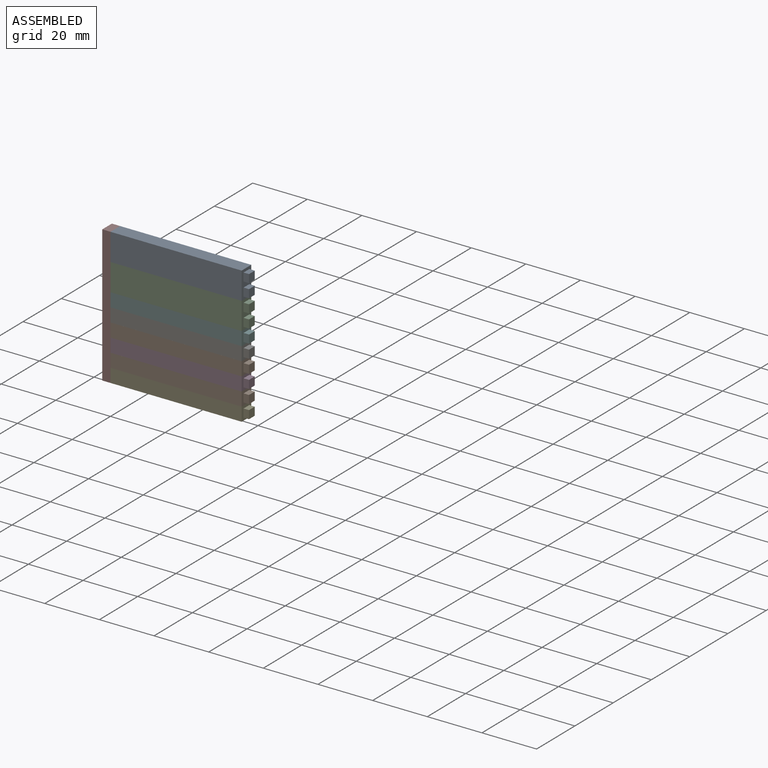
[diagram: assembled view]
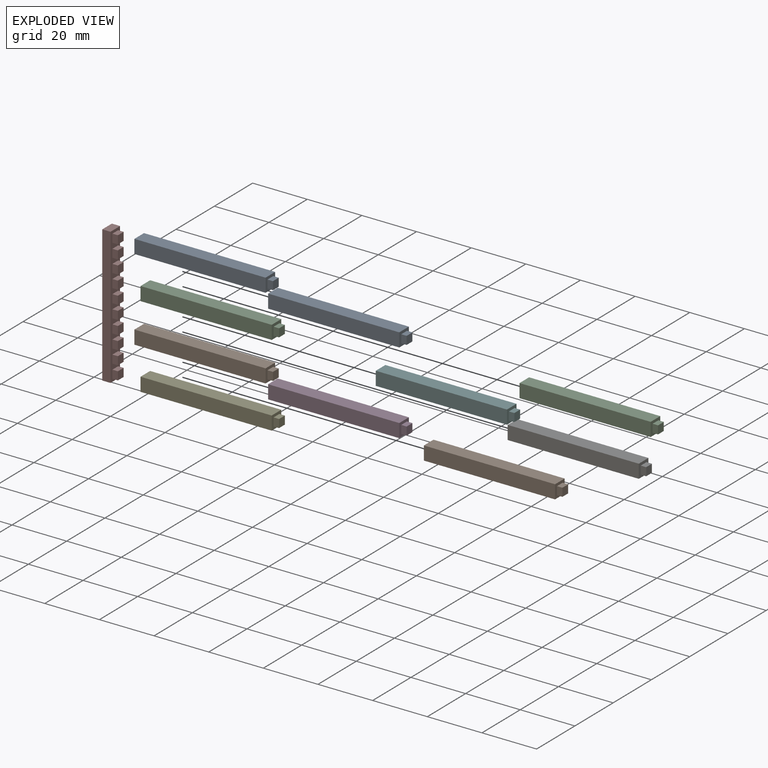
[diagram: exploded view]
GUIDED TOUR — MATED ASSEMBLY (Onshape document bbbdeaeaa51ca19b8bdb1864, AutoMate assembly bbbdeaeaa51ca19b8bdb1864_1c75b589501f7478635b629a_1ab8af5fc73595b730435a07_default)

This assembly has 11 components, labeled P0..P10 below (a component is one placed occurrence of a part; the same part can appear more than once), held together by 10 mates. A mate is a constraint between two components; its type names the relative motion it leaves free:
  FASTENED — locks the two components together rigidly (no relative motion).
Axis/direction vectors are unit vectors and 'through' points are millimeter coordinates, both in the assembly's world frame.

MATES
  1. FASTENED "Fastened 1": P7 <-> P0, direction (1.000, 0.000, 0.000) through (-10.22, 0.00, -9.99) mm
  2. FASTENED "Fastened 4": P7 <-> P2, direction (1.000, 0.000, 0.000) through (-10.22, 0.00, -24.99) mm
  3. FASTENED "Fastened 2": P7 <-> P8, direction (1.000, 0.000, 0.000) through (-10.22, 0.00, -14.99) mm
  4. FASTENED "Fastened 10": P4 <-> P7, direction (-1.000, 0.000, 0.000) through (-10.22, 0.00, -54.99) mm
  5. FASTENED "Fastened 6": P1 <-> P7, direction (-1.000, 0.000, 0.000) through (-10.22, 0.00, -39.99) mm
  6. FASTENED "Fastened 9": P7 <-> P9, direction (1.000, 0.000, 0.000) through (-10.22, 0.00, -49.99) mm
  7. FASTENED "Fastened 5": P5 <-> P7, direction (-1.000, 0.000, 0.000) through (-10.22, 0.00, -29.99) mm
  8. FASTENED "Fastened 8": P3 <-> P7, direction (-1.000, 0.000, 0.000) through (-10.22, 0.00, -44.99) mm
  9. FASTENED "Fastened 7": P7 <-> P6, direction (1.000, 0.000, 0.000) through (-10.22, 0.00, -34.99) mm
  10. FASTENED "Fastened 3": P7 <-> P10, direction (1.000, 0.000, 0.000) through (-10.22, 0.00, -19.99) mm

ASSEMBLY ORDER
  1. P7 — the base component [order heuristic]
  2. P0 [order heuristic]
  3. P1 [order heuristic]
  4. P2 [order heuristic]
  5. P3 [order heuristic]
  6. P4 [order heuristic]
  7. P5 [order heuristic]
  8. P6 [order heuristic]
  9. P8 [order heuristic]
  10. P9 [order heuristic]
  11. P10 [order heuristic]
Order-tag legend:
  [order heuristic] — this assembly is geometrically interlocked (no collision-free removal order exists), so components are listed in mate-graph order; insertion feasibility is not verified.

Of the 11 components, 11 carry the full construction recipe — the FeatureScript program that regenerates the part's solid from scratch; the rest are supplied as boundary geometry only.
Each toured component is shown spotlighted twice — in the assembled view, then in the exploded view, where a leader line traces a displaced component back to its assembled socket (saturated green if recipe-attached, orange if geometry-only; every other component desaturated gray) — followed by its recipe or geometry summary and the mates that hold it.
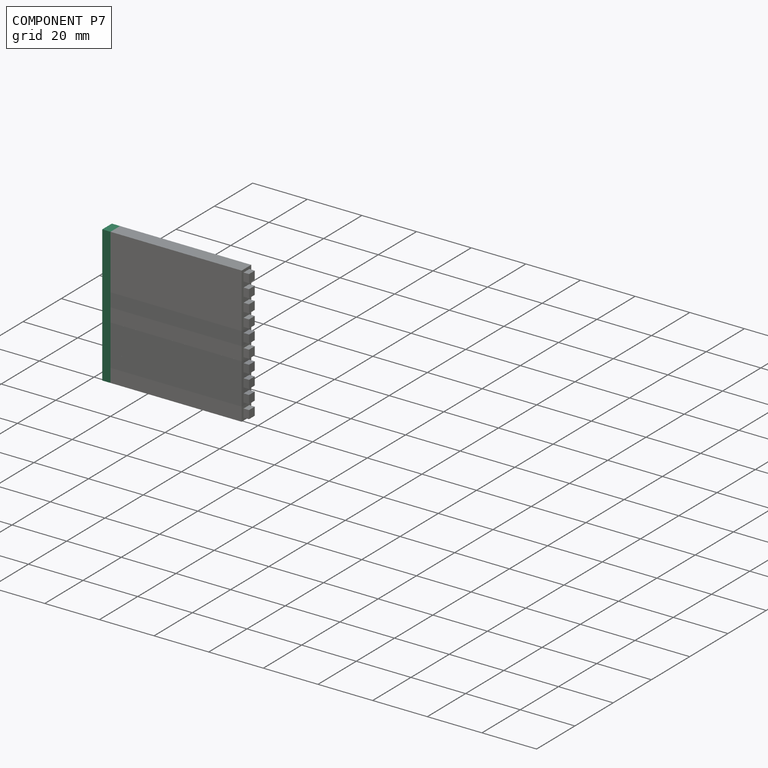
[diagram: component P7 — assembled]
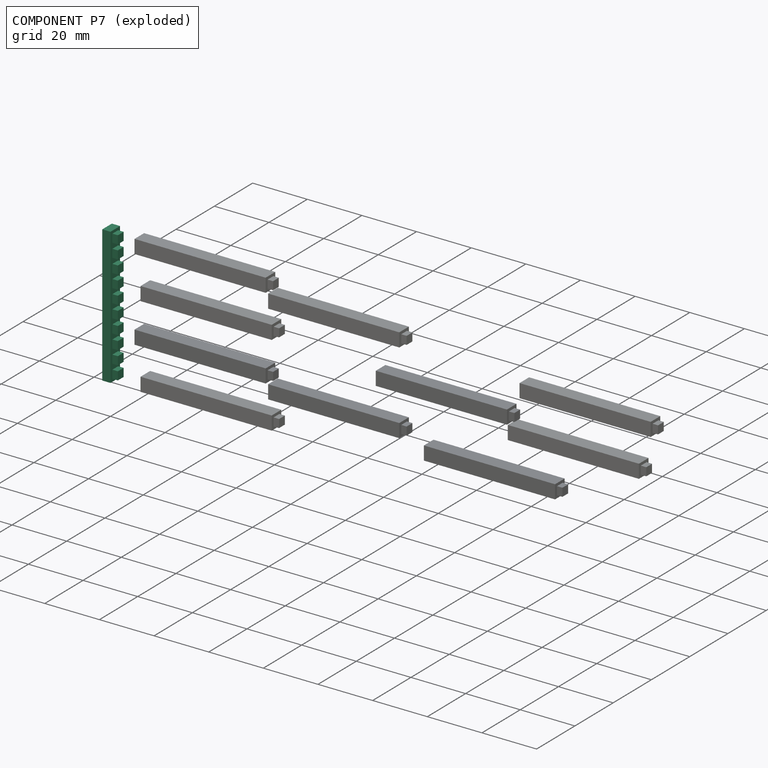
[diagram: component P7 — exploded]
COMPONENT P7 — recipe-attached (CADFS 00635119, mesh-verified: the recipe's output STEP matches this component's geometry to below the mesh-comparison resolution (tessellation chordal tolerance ~0.0757 mm)).
Held by: FASTENED mate "Fastened 1" to P0; FASTENED mate "Fastened 4" to P2; FASTENED mate "Fastened 2" to P8; FASTENED mate "Fastened 10" to P4; FASTENED mate "Fastened 6" to P1; FASTENED mate "Fastened 9" to P9; FASTENED mate "Fastened 5" to P5; FASTENED mate "Fastened 8" to P3; FASTENED mate "Fastened 7" to P6; FASTENED mate "Fastened 3" to P10.
Construction recipe (FeatureScript — the CAD program that rebuilds this solid; sketch coordinates are in the units given by the * unit suffixes, e.g. mm):

FeatureScript 1511;
import(path : "onshape/std/geometry.fs", version : "1511.0");
import(path : "onshape/std/common.fs", version : "1511.0");
const mm = millimeter;
const VERTEX = EntityType.VERTEX;
const EDGE = EntityType.EDGE;
const FACE = EntityType.FACE;
const BODY = EntityType.BODY;
function v(x, y){return vector(x, y);}
function OD(order){return orderDisambiguation(order);}
function OSD(set){return originalSetDisambiguation(set);}
function TD(topology){return topologyDisambiguation(topology);}
function TDD(query){return trueDependencyDisambiguation(query);}
function sQuery(a, b, c) {return sketchEntityQuery(a, b, c);}

annotation { "Feature Type Name" : "Feature", "Feature Type Description" : "" }
export const myFeature = defineFeature(function(context is Context, id is Id, definition is map)
    precondition{}
    {
        {
            var Q0;
            Q0=qCreatedBy(makeId("Front.planeOp"),FACE);
            var sketch = newSketch(context, id + "F0", { "sketchPlane" : qUnion([Q0])});
            skLineSegment(sketch, "E0.bottom", {"start": v(-25, -2.5) * mm, "end": v(25, -2.5) * mm});
            skLineSegment(sketch, "E0.top", {"start": v(-25, 2.5) * mm, "end": v(25, 2.5) * mm});
            skLineSegment(sketch, "E0.left", {"start": v(-25, -2.5) * mm, "end": v(-25, 2.5) * mm});
            skLineSegment(sketch, "E0.right", {"start": v(25, -2.5) * mm, "end": v(25, 2.5) * mm});
            skPoint(sketch, "E0.middle", {"position": v(0, 0) * mm});
            skSolve(sketch);
        }
        {
            var Q0;
            Q0 = qSketchRegion(id + "F0", true);
            extrude(context, id + "F1", {"entities" : qUnion([Q0]), "depth" : 3 * mm, "offsetDistance" : 25.4 * mm});
        }
        {
            var Q0;
            Q0=makeQuery(id+"F1.opExtrude","CAP_FACE",FACE,{"disambiguationData":[OSD([sQuery(id+"F0.wireOp",EDGE,"E0.bottom"),sQuery(id+"F0.wireOp",EDGE,"E0.top"),sQuery(id+"F0.wireOp",EDGE,"E0.left"),sQuery(id+"F0.wireOp",EDGE,"E0.right")])],"isStart":false});
            var sketch = newSketch(context, id + "F2", { "sketchPlane" : qUnion([Q0])});
            skLineSegment(sketch, "E1.bottom", {"start": v(-21, -1.5) * mm, "end": v(-24, -1.5) * mm});
            skLineSegment(sketch, "E1.top", {"start": v(-21, 1.5) * mm, "end": v(-24, 1.5) * mm});
            skLineSegment(sketch, "E1.left", {"start": v(-21, -1.5) * mm, "end": v(-21, 1.5) * mm});
            skLineSegment(sketch, "E1.right", {"start": v(-24, -1.5) * mm, "end": v(-24, 1.5) * mm});
            skPoint(sketch, "E1.middle", {"position": v(-22.5, 0) * mm});
            skPoint(sketch, "E1.middle.positionSnap0", {"position": v(-25, 0) * mm});
            skPoint(sketch, "E1.centerSnap0", {"position": v(-25, 0) * mm});
            skLineSegment(sketch, "E2.1.0.0", {"start": v(-19, -1.5) * mm, "end": v(-19, 1.5) * mm});
            skLineSegment(sketch, "E2.1.0.1", {"start": v(-16, 1.5) * mm, "end": v(-19, 1.5) * mm});
            skLineSegment(sketch, "E2.1.0.2", {"start": v(-16, -1.5) * mm, "end": v(-16, 1.5) * mm});
            skLineSegment(sketch, "E2.1.0.3", {"start": v(-16, -1.5) * mm, "end": v(-19, -1.5) * mm});
            skLineSegment(sketch, "E2.2.0.0", {"start": v(-14, -1.5) * mm, "end": v(-14, 1.5) * mm});
            skLineSegment(sketch, "E2.2.0.1", {"start": v(-11, 1.5) * mm, "end": v(-14, 1.5) * mm});
            skLineSegment(sketch, "E2.2.0.2", {"start": v(-11, -1.5) * mm, "end": v(-11, 1.5) * mm});
            skLineSegment(sketch, "E2.2.0.3", {"start": v(-11, -1.5) * mm, "end": v(-14, -1.5) * mm});
            skLineSegment(sketch, "E2.3.0.0", {"start": v(-9, -1.5) * mm, "end": v(-9, 1.5) * mm});
            skLineSegment(sketch, "E2.3.0.1", {"start": v(-6, 1.5) * mm, "end": v(-9, 1.5) * mm});
            skLineSegment(sketch, "E2.3.0.2", {"start": v(-6, -1.5) * mm, "end": v(-6, 1.5) * mm});
            skLineSegment(sketch, "E2.3.0.3", {"start": v(-6, -1.5) * mm, "end": v(-9, -1.5) * mm});
            skLineSegment(sketch, "E2.4.0.0", {"start": v(-4, -1.5) * mm, "end": v(-4, 1.5) * mm});
            skLineSegment(sketch, "E2.4.0.1", {"start": v(-1, 1.5) * mm, "end": v(-4, 1.5) * mm});
            skLineSegment(sketch, "E2.4.0.2", {"start": v(-1, -1.5) * mm, "end": v(-1, 1.5) * mm});
            skLineSegment(sketch, "E2.4.0.3", {"start": v(-1, -1.5) * mm, "end": v(-4, -1.5) * mm});
            skLineSegment(sketch, "E2.5.0.0", {"start": v(1, -1.5) * mm, "end": v(1, 1.5) * mm});
            skLineSegment(sketch, "E2.5.0.1", {"start": v(4, 1.5) * mm, "end": v(1, 1.5) * mm});
            skLineSegment(sketch, "E2.5.0.2", {"start": v(4, -1.5) * mm, "end": v(4, 1.5) * mm});
            skLineSegment(sketch, "E2.5.0.3", {"start": v(4, -1.5) * mm, "end": v(1, -1.5) * mm});
            skLineSegment(sketch, "E2.6.0.0", {"start": v(6, -1.5) * mm, "end": v(6, 1.5) * mm});
            skLineSegment(sketch, "E2.6.0.1", {"start": v(9, 1.5) * mm, "end": v(6, 1.5) * mm});
            skLineSegment(sketch, "E2.6.0.2", {"start": v(9, -1.5) * mm, "end": v(9, 1.5) * mm});
            skLineSegment(sketch, "E2.6.0.3", {"start": v(9, -1.5) * mm, "end": v(6, -1.5) * mm});
            skLineSegment(sketch, "E2.7.0.0", {"start": v(11, -1.5) * mm, "end": v(11, 1.5) * mm});
            skLineSegment(sketch, "E2.7.0.1", {"start": v(14, 1.5) * mm, "end": v(11, 1.5) * mm});
            skLineSegment(sketch, "E2.7.0.2", {"start": v(14, -1.5) * mm, "end": v(14, 1.5) * mm});
            skLineSegment(sketch, "E2.7.0.3", {"start": v(14, -1.5) * mm, "end": v(11, -1.5) * mm});
            skLineSegment(sketch, "E2.8.0.0", {"start": v(16, -1.5) * mm, "end": v(16, 1.5) * mm});
            skLineSegment(sketch, "E2.8.0.1", {"start": v(19, 1.5) * mm, "end": v(16, 1.5) * mm});
            skLineSegment(sketch, "E2.8.0.2", {"start": v(19, -1.5) * mm, "end": v(19, 1.5) * mm});
            skLineSegment(sketch, "E2.8.0.3", {"start": v(19, -1.5) * mm, "end": v(16, -1.5) * mm});
            skLineSegment(sketch, "E2.9.0.0", {"start": v(21, -1.5) * mm, "end": v(21, 1.5) * mm});
            skLineSegment(sketch, "E2.9.0.1", {"start": v(24, 1.5) * mm, "end": v(21, 1.5) * mm});
            skLineSegment(sketch, "E2.9.0.2", {"start": v(24, -1.5) * mm, "end": v(24, 1.5) * mm});
            skLineSegment(sketch, "E2.9.0.3", {"start": v(24, -1.5) * mm, "end": v(21, -1.5) * mm});
            skLineSegment(sketch, "E2.direction1", {"start": v(-24, -1.5) * mm, "end": v(-19, -1.5) * mm, "construction": true});
            skSolve(sketch);
        }
        {
            var Q0;
            Q0=makeQuery(id+"F2.imprint","IMPRINT",FACE,{"disambiguationData":[TD([[makeQuery(id+"F2.imprint","IMPRINT",EDGE,{"derivedFrom":sQuery(id+"F2.wireOp",EDGE,"E1.bottom")}),-1.0]])]});
            var Q1;
            Q1=makeQuery(id+"F2.imprint","IMPRINT",FACE,{"disambiguationData":[TD([[makeQuery(id+"F2.imprint","IMPRINT",EDGE,{"derivedFrom":sQuery(id+"F2.wireOp",EDGE,"E2.1.0.0")}),-1.0]])]});
            var Q2;
            Q2=makeQuery(id+"F2.imprint","IMPRINT",FACE,{"disambiguationData":[TD([[makeQuery(id+"F2.imprint","IMPRINT",EDGE,{"derivedFrom":sQuery(id+"F2.wireOp",EDGE,"E2.2.0.0")}),-1.0]])]});
            var Q3;
            Q3=makeQuery(id+"F2.imprint","IMPRINT",FACE,{"disambiguationData":[TD([[makeQuery(id+"F2.imprint","IMPRINT",EDGE,{"derivedFrom":sQuery(id+"F2.wireOp",EDGE,"E2.3.0.0")}),-1.0]])]});
            var Q4;
            Q4=makeQuery(id+"F2.imprint","IMPRINT",FACE,{"disambiguationData":[TD([[makeQuery(id+"F2.imprint","IMPRINT",EDGE,{"derivedFrom":sQuery(id+"F2.wireOp",EDGE,"E2.4.0.0")}),-1.0]])]});
            var Q5;
            Q5=makeQuery(id+"F2.imprint","IMPRINT",FACE,{"disambiguationData":[TD([[makeQuery(id+"F2.imprint","IMPRINT",EDGE,{"derivedFrom":sQuery(id+"F2.wireOp",EDGE,"E2.5.0.0")}),-1.0]])]});
            var Q6;
            Q6=makeQuery(id+"F2.imprint","IMPRINT",FACE,{"disambiguationData":[TD([[makeQuery(id+"F2.imprint","IMPRINT",EDGE,{"derivedFrom":sQuery(id+"F2.wireOp",EDGE,"E2.6.0.0")}),-1.0]])]});
            var Q7;
            Q7=makeQuery(id+"F2.imprint","IMPRINT",FACE,{"disambiguationData":[TD([[makeQuery(id+"F2.imprint","IMPRINT",EDGE,{"derivedFrom":sQuery(id+"F2.wireOp",EDGE,"E2.7.0.0")}),-1.0]])]});
            var Q8;
            Q8=makeQuery(id+"F2.imprint","IMPRINT",FACE,{"disambiguationData":[TD([[makeQuery(id+"F2.imprint","IMPRINT",EDGE,{"derivedFrom":sQuery(id+"F2.wireOp",EDGE,"E2.8.0.0")}),-1.0]])]});
            var Q9;
            Q9=makeQuery(id+"F2.imprint","IMPRINT",FACE,{"disambiguationData":[TD([[makeQuery(id+"F2.imprint","IMPRINT",EDGE,{"derivedFrom":sQuery(id+"F2.wireOp",EDGE,"E2.9.0.0")}),-1.0]])]});
            extrude(context, id + "F3", {"entities" : qUnion([Q0, Q1, Q2, Q3, Q4, Q5, Q6, Q7, Q8, Q9]), "operationType" : NewBodyOperationType.ADD, "depth" : 2 * mm, "offsetDistance" : 25 * mm});
        }
    });
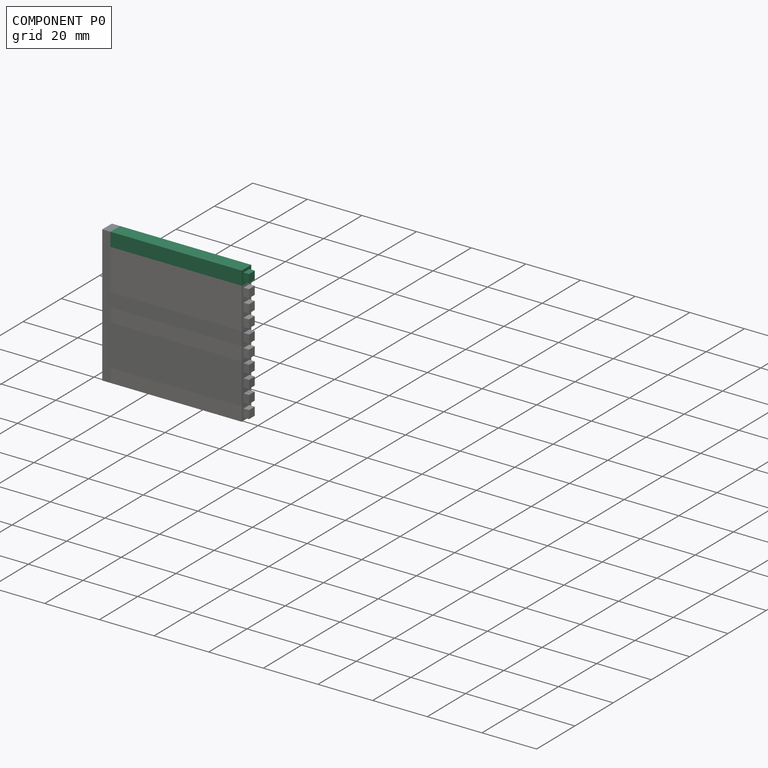
[diagram: component P0 — assembled]
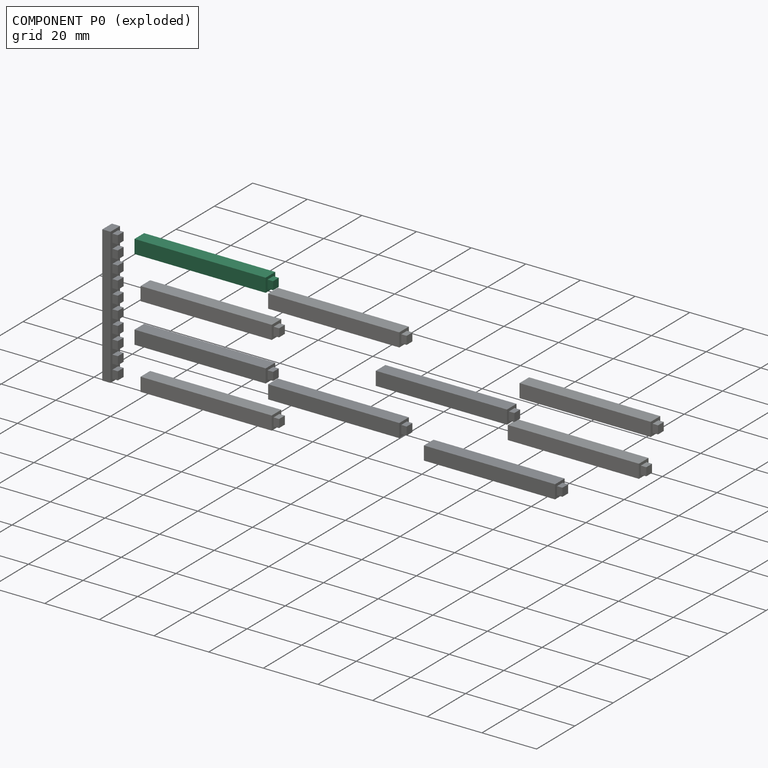
[diagram: component P0 — exploded]
COMPONENT P0 — recipe-attached (CADFS 00635118, mesh-verified: the recipe's output STEP matches this component's geometry to below the mesh-comparison resolution (tessellation chordal tolerance ~0.0757 mm)).
Held by: FASTENED mate "Fastened 1" to P7.
Construction recipe (FeatureScript — the CAD program that rebuilds this solid; sketch coordinates are in the units given by the * unit suffixes, e.g. mm):

FeatureScript 1511;
import(path : "onshape/std/geometry.fs", version : "1511.0");
import(path : "onshape/std/common.fs", version : "1511.0");
const mm = millimeter;
const VERTEX = EntityType.VERTEX;
const EDGE = EntityType.EDGE;
const FACE = EntityType.FACE;
const BODY = EntityType.BODY;
function v(x, y){return vector(x, y);}
function OD(order){return orderDisambiguation(order);}
function OSD(set){return originalSetDisambiguation(set);}
function TD(topology){return topologyDisambiguation(topology);}
function TDD(query){return trueDependencyDisambiguation(query);}
function sQuery(a, b, c) {return sketchEntityQuery(a, b, c);}

annotation { "Feature Type Name" : "Feature", "Feature Type Description" : "" }
export const myFeature = defineFeature(function(context is Context, id is Id, definition is map)
    precondition{}
    {
        {
            var Q0;
            Q0=qCreatedBy(makeId("Front.planeOp"),FACE);
            var sketch = newSketch(context, id + "F0", { "sketchPlane" : qUnion([Q0])});
            skLineSegment(sketch, "E0.bottom", {"start": v(-25, -2.5) * mm, "end": v(25, -2.5) * mm});
            skLineSegment(sketch, "E0.top", {"start": v(-25, 2.5) * mm, "end": v(25, 2.5) * mm});
            skLineSegment(sketch, "E0.left", {"start": v(-25, -2.5) * mm, "end": v(-25, 2.5) * mm});
            skLineSegment(sketch, "E0.right", {"start": v(25, -2.5) * mm, "end": v(25, 2.5) * mm});
            skPoint(sketch, "E0.middle", {"position": v(0, 0) * mm});
            skSolve(sketch);
        }
        {
            var Q0;
            Q0 = qSketchRegion(id + "F0", true);
            extrude(context, id + "F1", {"entities" : qUnion([Q0]), "depth" : 5 * mm, "offsetDistance" : 25.4 * mm});
        }
        {
            var Q0;
            Q0=makeQuery(id+"F1.opExtrude","SWEPT_FACE",FACE,{"disambiguationData":[OSD([sQuery(id+"F0.wireOp",EDGE,"E0.left")])]});
            var sketch = newSketch(context, id + "F2", { "sketchPlane" : qUnion([Q0])});
            skLineSegment(sketch, "E1.bottom", {"start": v(1, 1.5) * mm, "end": v(4, 1.5) * mm});
            skLineSegment(sketch, "E1.top", {"start": v(1, -1.5) * mm, "end": v(4, -1.5) * mm});
            skLineSegment(sketch, "E1.left", {"start": v(1, 1.5) * mm, "end": v(1, -1.5) * mm});
            skLineSegment(sketch, "E1.right", {"start": v(4, 1.5) * mm, "end": v(4, -1.5) * mm});
            skPoint(sketch, "E1.middle", {"position": v(2.5, 0) * mm});
            skPoint(sketch, "E1.middle.positionSnap0", {"position": v(2.5, 2.5) * mm});
            skPoint(sketch, "E1.middle.positionSnap1", {"position": v(0, 0) * mm});
            skPoint(sketch, "E1.centerSnap0", {"position": v(2.5, 2.5) * mm});
            skPoint(sketch, "E1.centerSnap1", {"position": v(0, 0) * mm});
            skSolve(sketch);
        }
        {
            var Q0;
            Q0 = qSketchRegion(id + "F2", true);
            extrude(context, id + "F3", {"entities" : qUnion([Q0]), "operationType" : NewBodyOperationType.REMOVE, "oppositeDirection" : true, "depth" : 2 * mm, "offsetDistance" : 25 * mm});
        }
        {
            var Q0;
            Q0=makeQuery(id+"F1.opExtrude","SWEPT_FACE",FACE,{"disambiguationData":[OSD([sQuery(id+"F0.wireOp",EDGE,"E0.right")])]});
            var sketch = newSketch(context, id + "F4", { "sketchPlane" : qUnion([Q0])});
            skLineSegment(sketch, "E2.bottom", {"start": v(-4, -1.5) * mm, "end": v(-1, -1.5) * mm});
            skLineSegment(sketch, "E2.top", {"start": v(-4, 1.5) * mm, "end": v(-1, 1.5) * mm});
            skLineSegment(sketch, "E2.left", {"start": v(-4, -1.5) * mm, "end": v(-4, 1.5) * mm});
            skLineSegment(sketch, "E2.right", {"start": v(-1, -1.5) * mm, "end": v(-1, 1.5) * mm});
            skPoint(sketch, "E2.middle", {"position": v(-2.5, 0) * mm});
            skPoint(sketch, "E2.middle.positionSnap0", {"position": v(-2.5, 2.5) * mm});
            skPoint(sketch, "E2.middle.positionSnap1", {"position": v(-5, 0) * mm});
            skPoint(sketch, "E2.centerSnap0", {"position": v(-2.5, 2.5) * mm});
            skPoint(sketch, "E2.centerSnap1", {"position": v(-5, 0) * mm});
            skSolve(sketch);
        }
        {
            var Q0;
            Q0=makeQuery(id+"F4.imprint","IMPRINT",FACE,{"disambiguationData":[TD([[makeQuery(id+"F4.imprint","IMPRINT",EDGE,{"derivedFrom":sQuery(id+"F4.wireOp",EDGE,"E2.bottom")}),-1.0]])]});
            extrude(context, id + "F5", {"entities" : qUnion([Q0]), "operationType" : NewBodyOperationType.REMOVE, "oppositeDirection" : true, "depth" : 2 * mm, "offsetDistance" : 25 * mm});
        }
    });
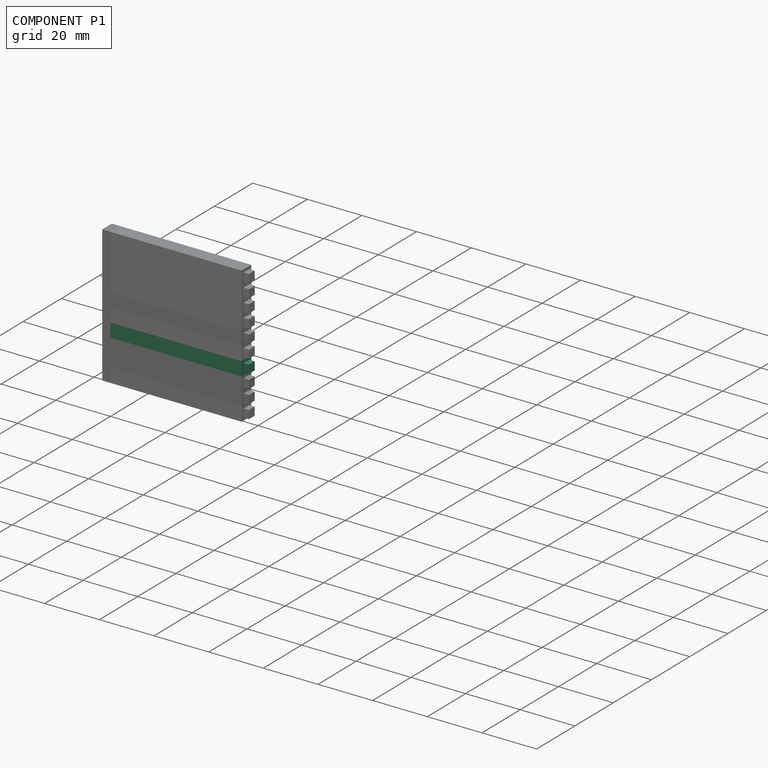
[diagram: component P1 — assembled]
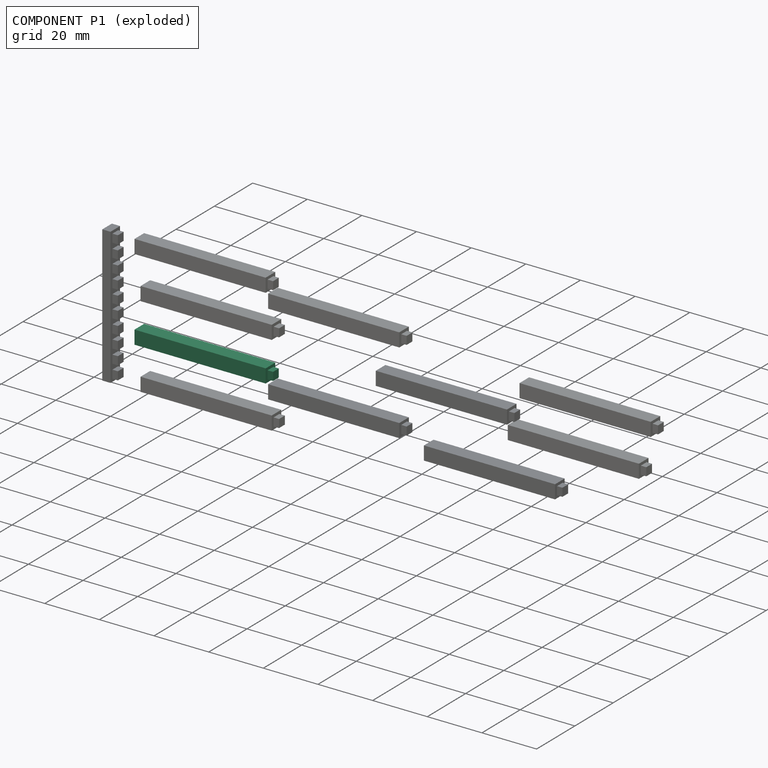
[diagram: component P1 — exploded]
COMPONENT P1 — same part as P0 (CADFS 00635118); its construction recipe is shown at P0.
Held by: FASTENED mate "Fastened 6" to P7.
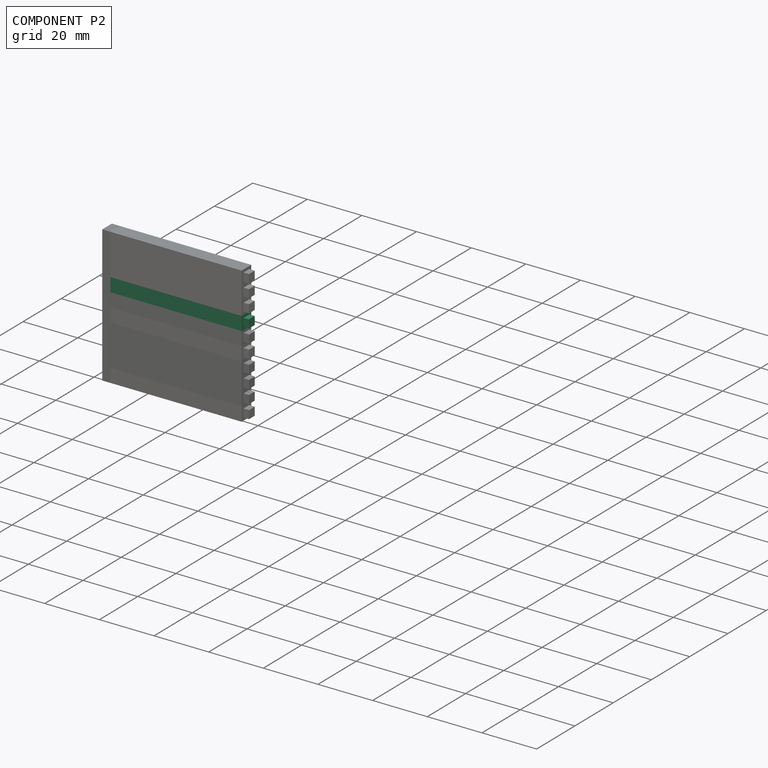
[diagram: component P2 — assembled]
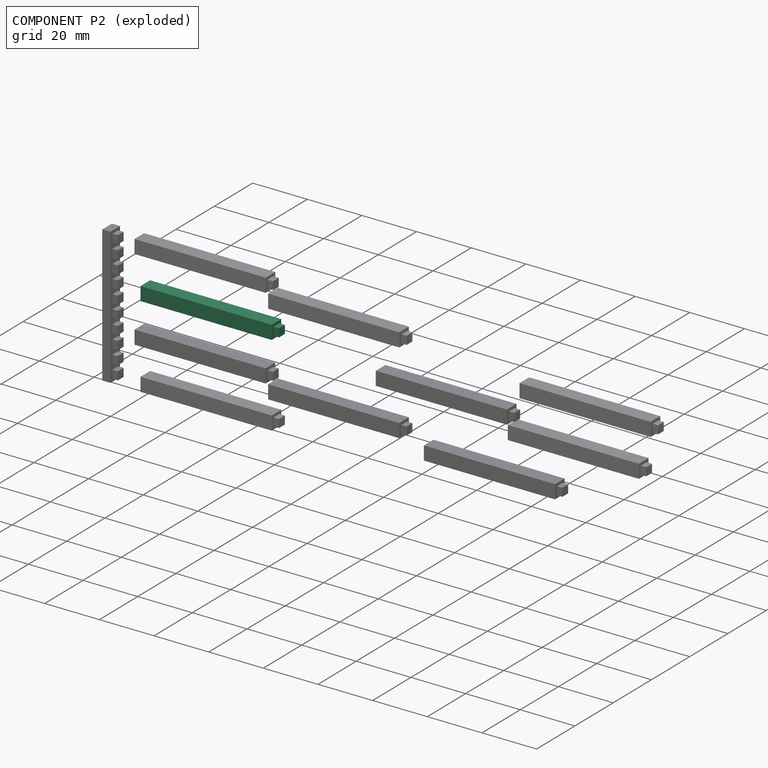
[diagram: component P2 — exploded]
COMPONENT P2 — same part as P0 (CADFS 00635118); its construction recipe is shown at P0.
Held by: FASTENED mate "Fastened 4" to P7.
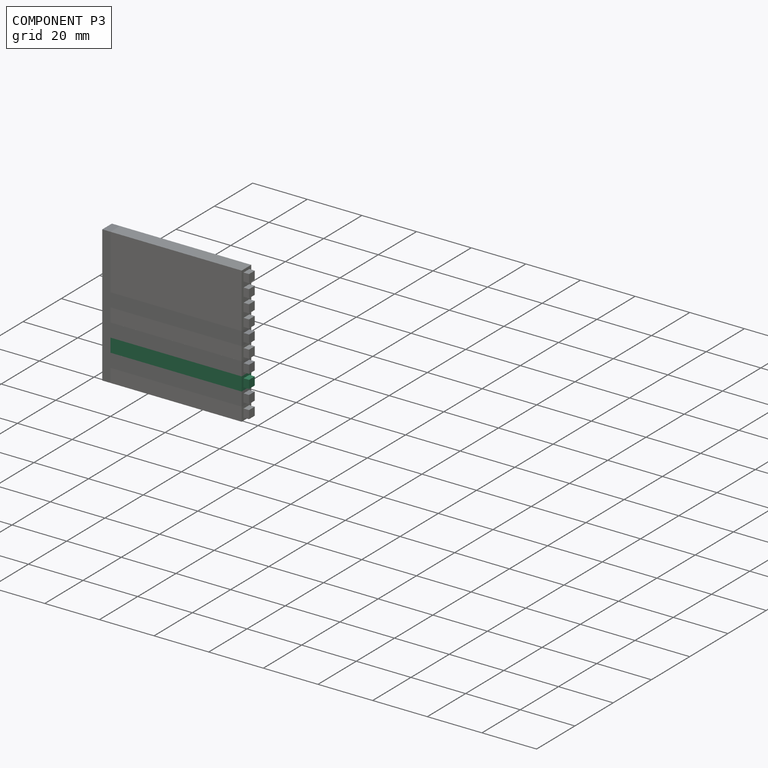
[diagram: component P3 — assembled]
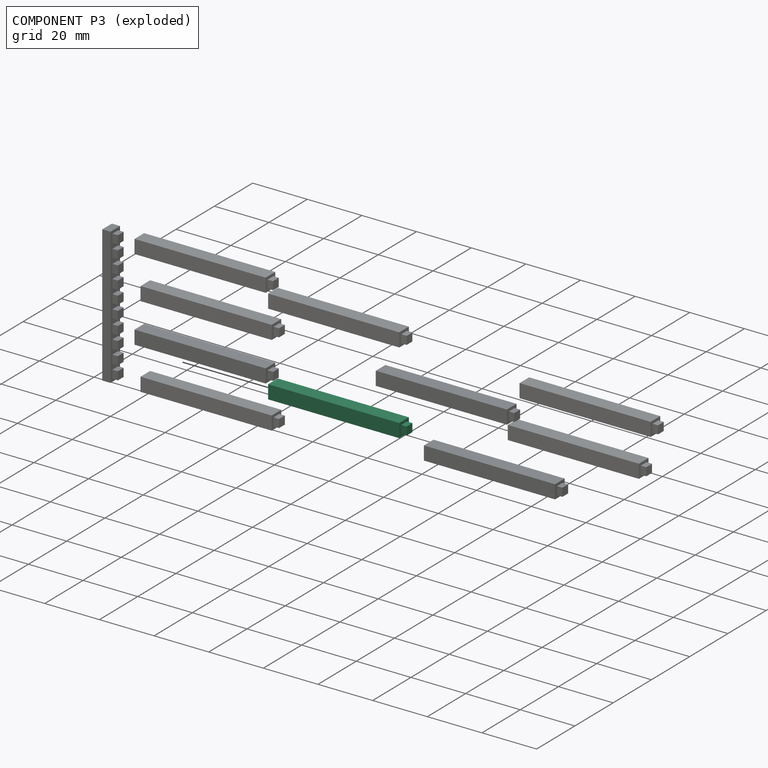
[diagram: component P3 — exploded]
COMPONENT P3 — same part as P0 (CADFS 00635118); its construction recipe is shown at P0.
Held by: FASTENED mate "Fastened 8" to P7.
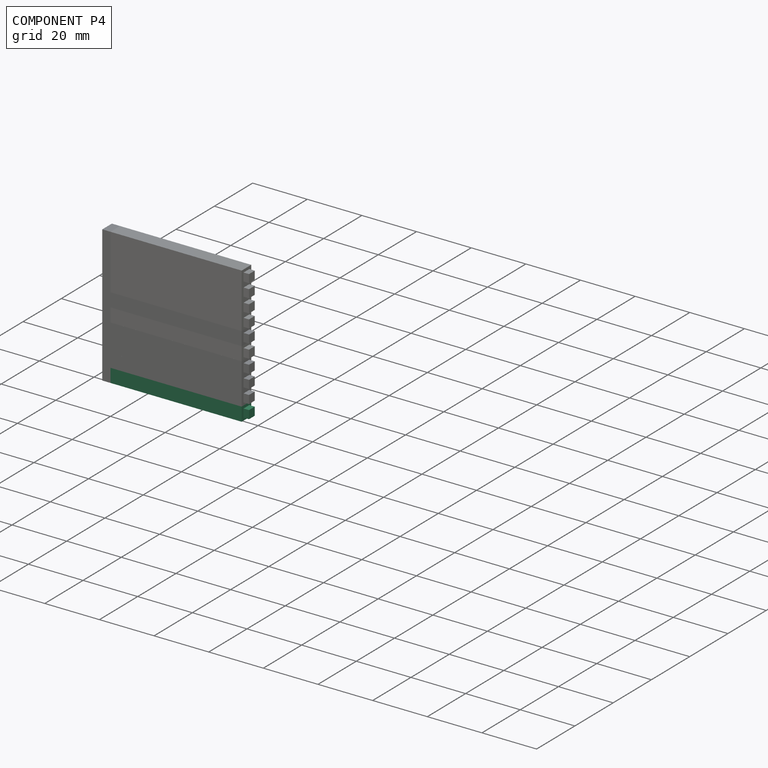
[diagram: component P4 — assembled]
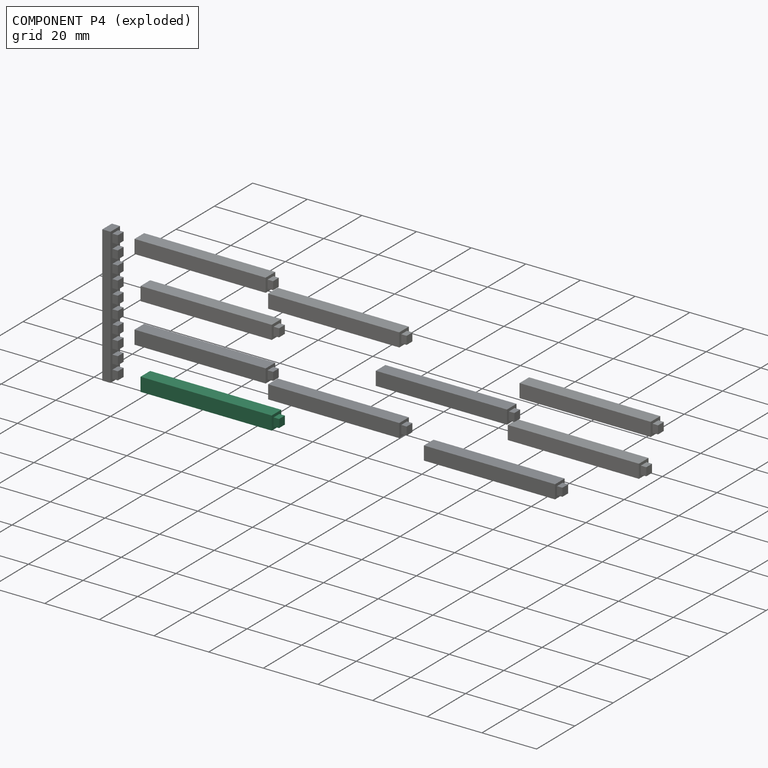
[diagram: component P4 — exploded]
COMPONENT P4 — same part as P0 (CADFS 00635118); its construction recipe is shown at P0.
Held by: FASTENED mate "Fastened 10" to P7.
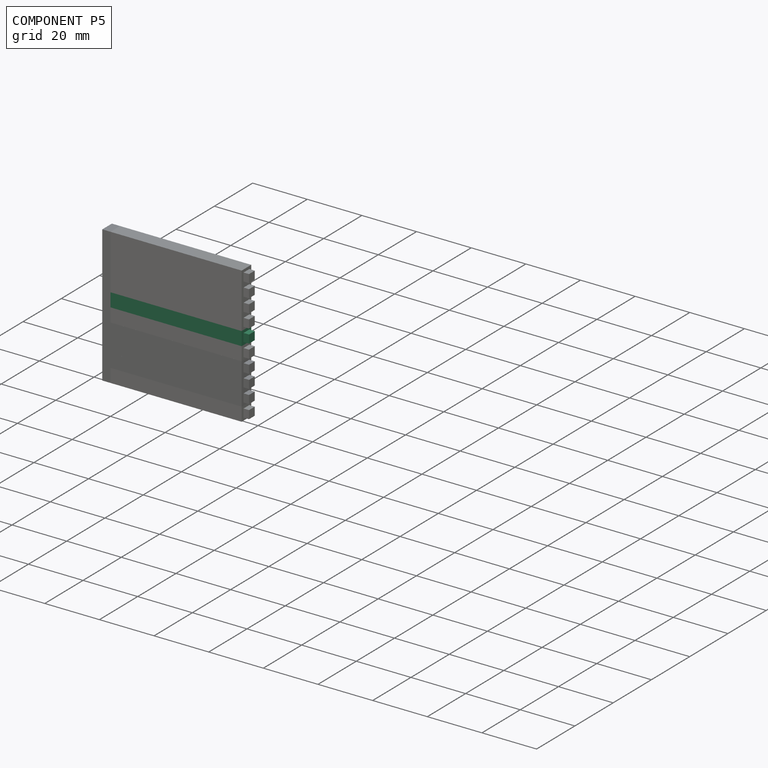
[diagram: component P5 — assembled]
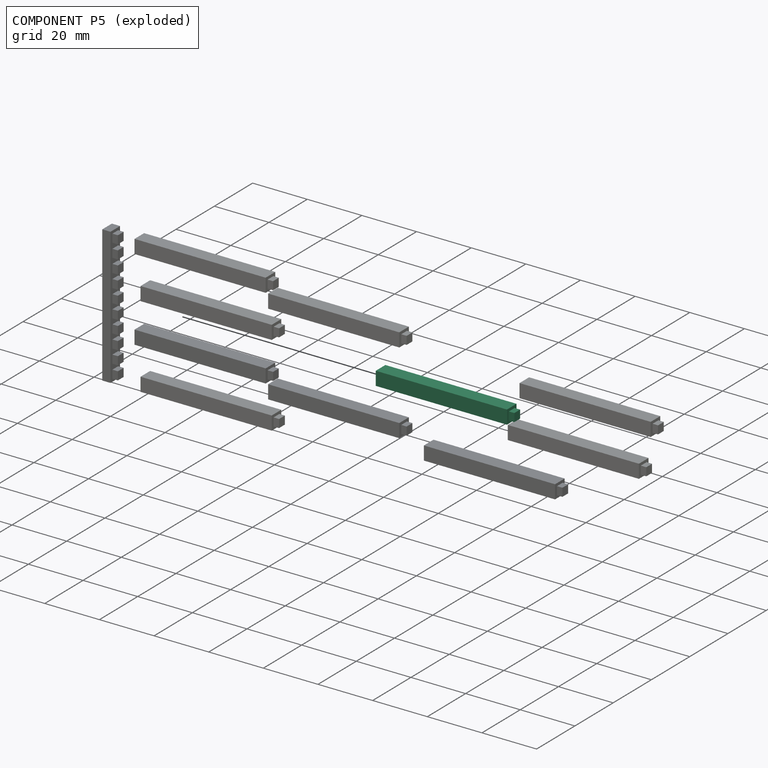
[diagram: component P5 — exploded]
COMPONENT P5 — same part as P0 (CADFS 00635118); its construction recipe is shown at P0.
Held by: FASTENED mate "Fastened 5" to P7.
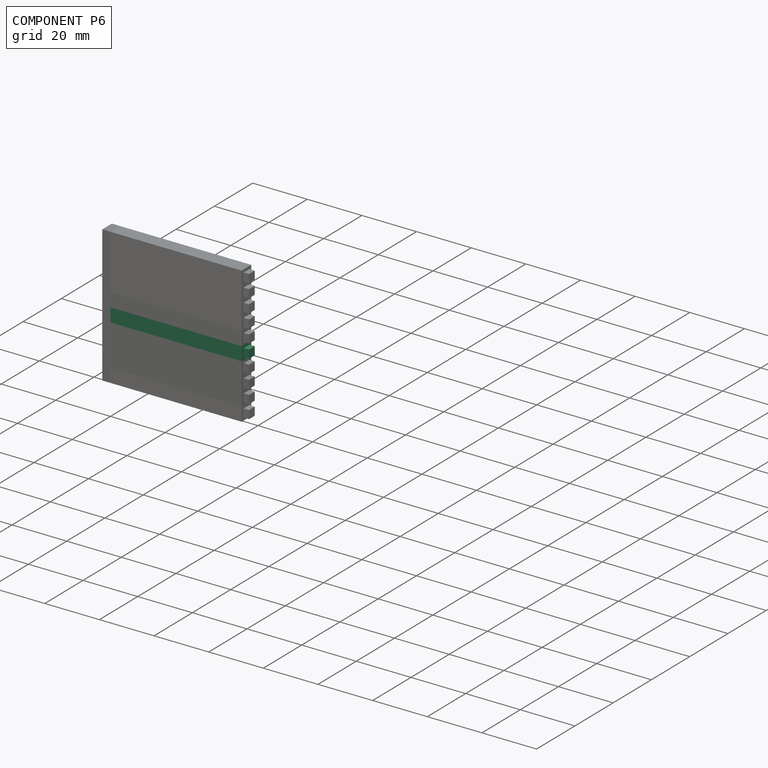
[diagram: component P6 — assembled]
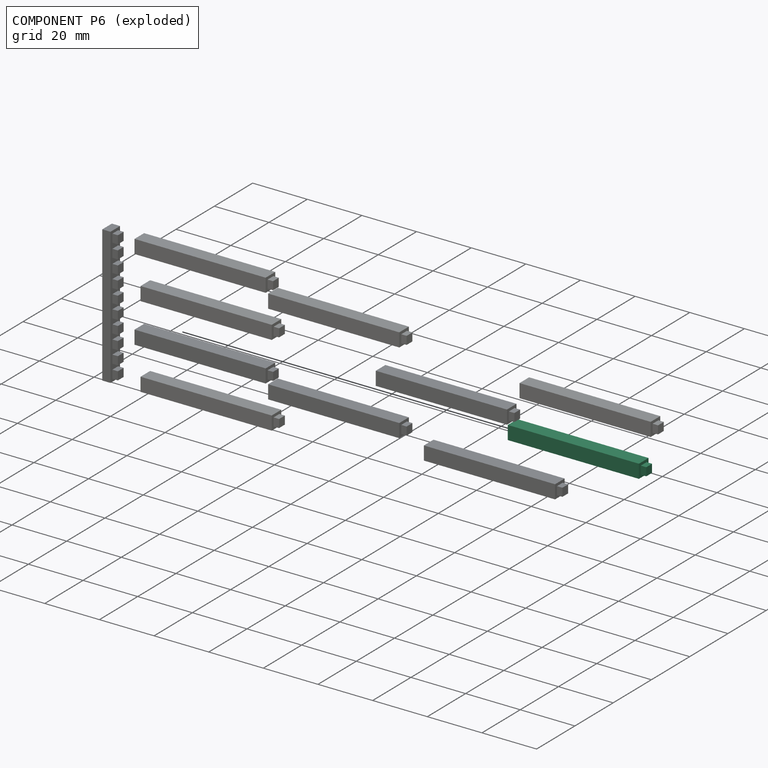
[diagram: component P6 — exploded]
COMPONENT P6 — same part as P0 (CADFS 00635118); its construction recipe is shown at P0.
Held by: FASTENED mate "Fastened 7" to P7.
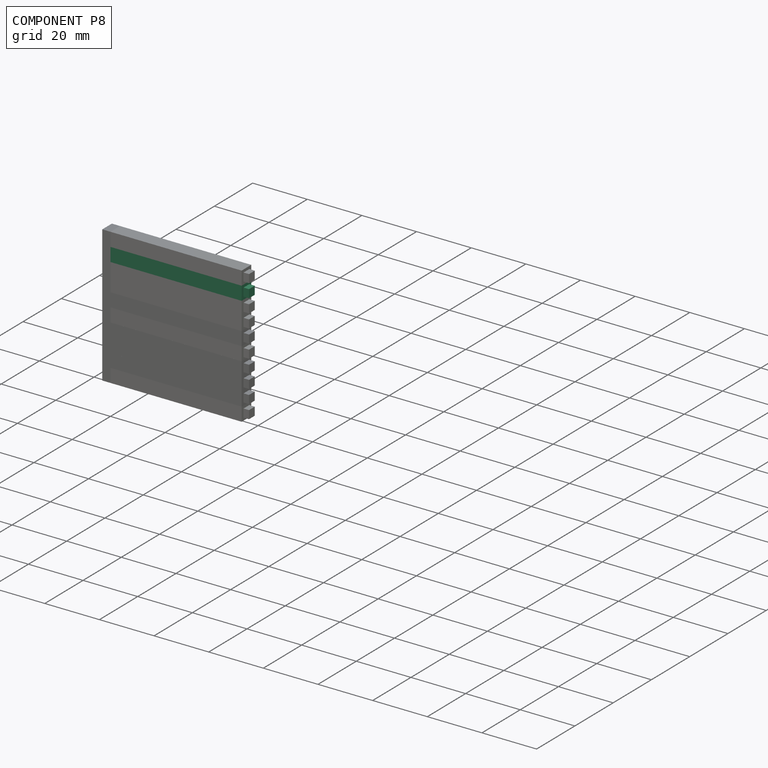
[diagram: component P8 — assembled]
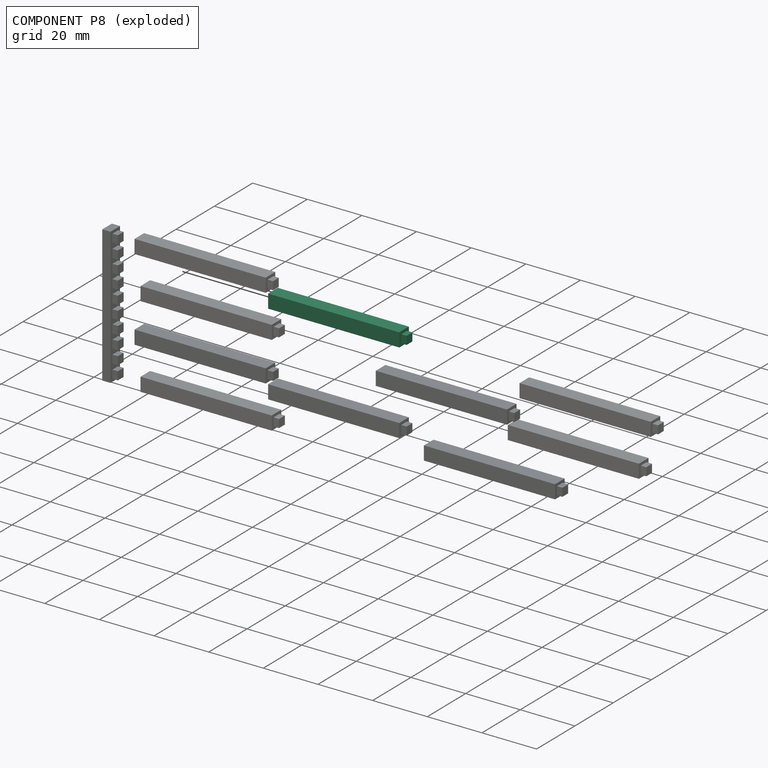
[diagram: component P8 — exploded]
COMPONENT P8 — same part as P0 (CADFS 00635118); its construction recipe is shown at P0.
Held by: FASTENED mate "Fastened 2" to P7.
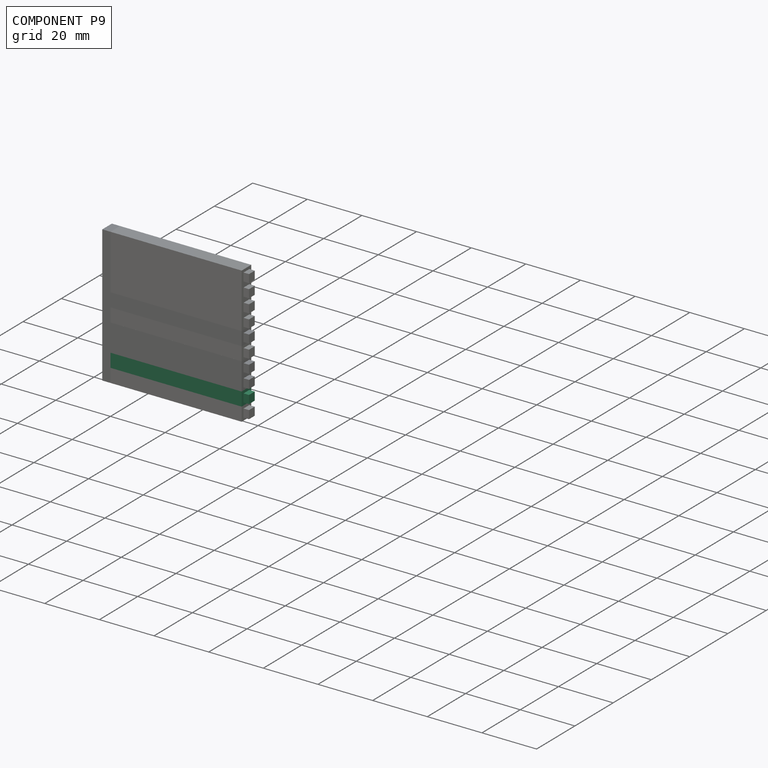
[diagram: component P9 — assembled]
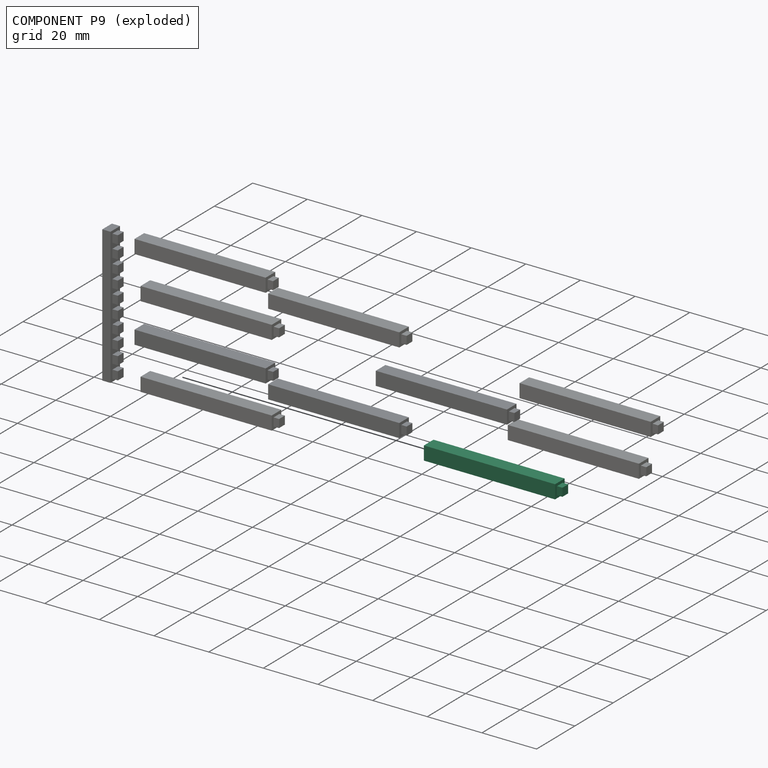
[diagram: component P9 — exploded]
COMPONENT P9 — same part as P0 (CADFS 00635118); its construction recipe is shown at P0.
Held by: FASTENED mate "Fastened 9" to P7.
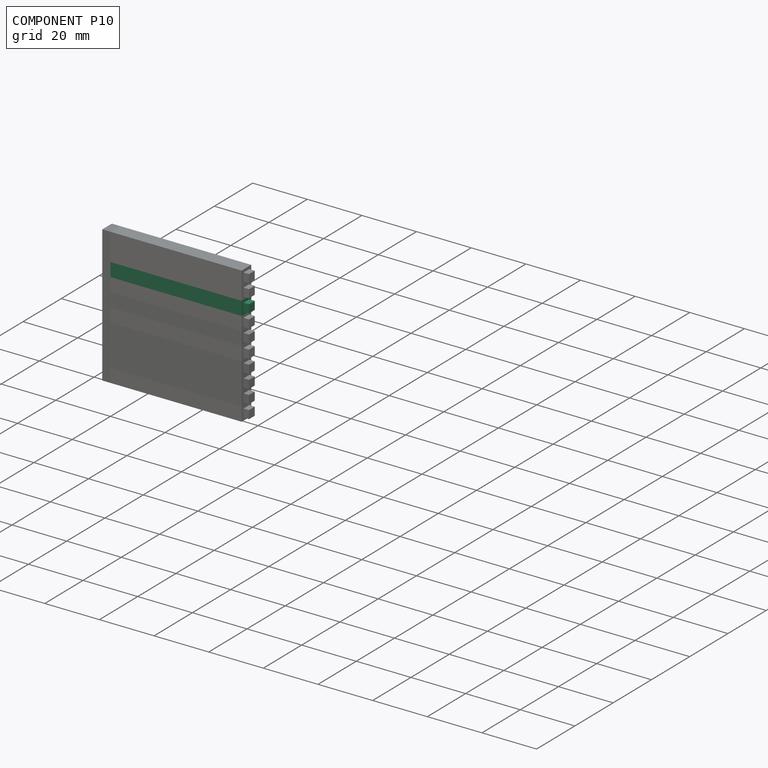
[diagram: component P10 — assembled]
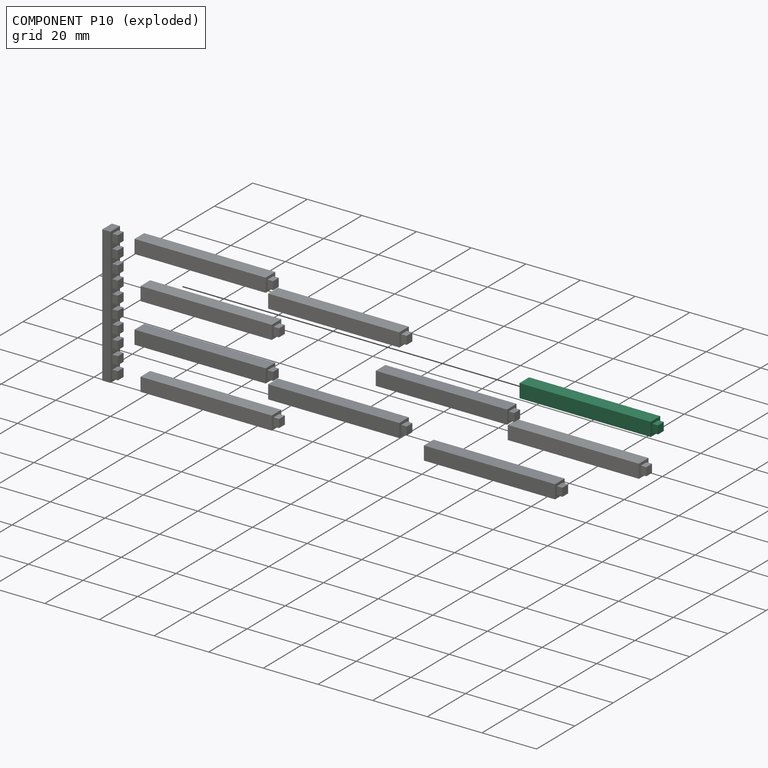
[diagram: component P10 — exploded]
COMPONENT P10 — same part as P0 (CADFS 00635118); its construction recipe is shown at P0.
Held by: FASTENED mate "Fastened 3" to P7.
PROVENANCE & LICENSES
Assembly (occurrences, transforms, mates, per-part STEP geometry): AutoMate dataset, Zenodo record 7776208, CC0.
Construction recipes: CADFS (HuggingFace VladPyatov/CADFS, CC-BY-4.0, layered over the ABC dataset), FeatureScript reconstruction programs keyed by ABC model id.
Join: ABC meta listings map ABC model id -> Onshape documentId; within a shared document, parts are matched by geometric signature (bounding-box dims + volume at 0.1% relative tolerance, exact B-rep face/solid counts).
Verification: 11 of this assembly's 11 components carry a recipe attachment, and every attachment is mesh-verified: the CADFS STEP and the AutoMate member STEP were compared as meshes in their shared local frame (symmetric sampled-point-to-mesh distance); worst across the 11 attachments: below the mesh-comparison resolution (tessellation chordal tolerance ~0.0757 mm) on a 50 mm part.
Renders: orthographic iso camera (az 35 / el 25); the floor grid conveys scale (grid pitch printed in each image; no ruler). In the exploded view each component is displaced by its stored offset vector: the offsets alone carry the explosion direction (mate normal/axis signs are not orientation cues and do not encode it), and separation distances are assigned per mate-chain, not proportionally to assembly-order depth.
